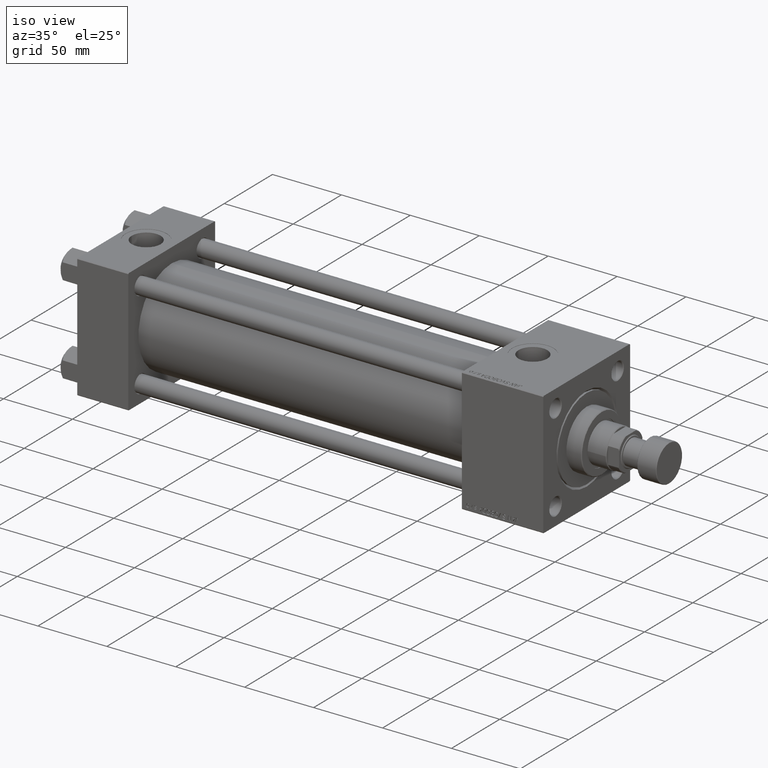
[diagram: clean part render]
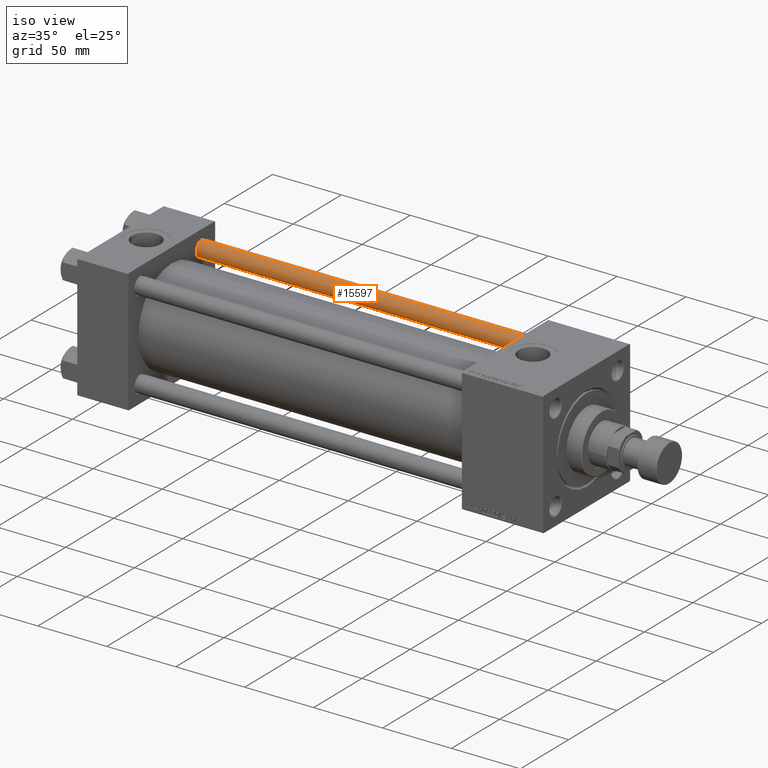
[diagram: same view with one face highlighted and labeled with its STEP entity id]
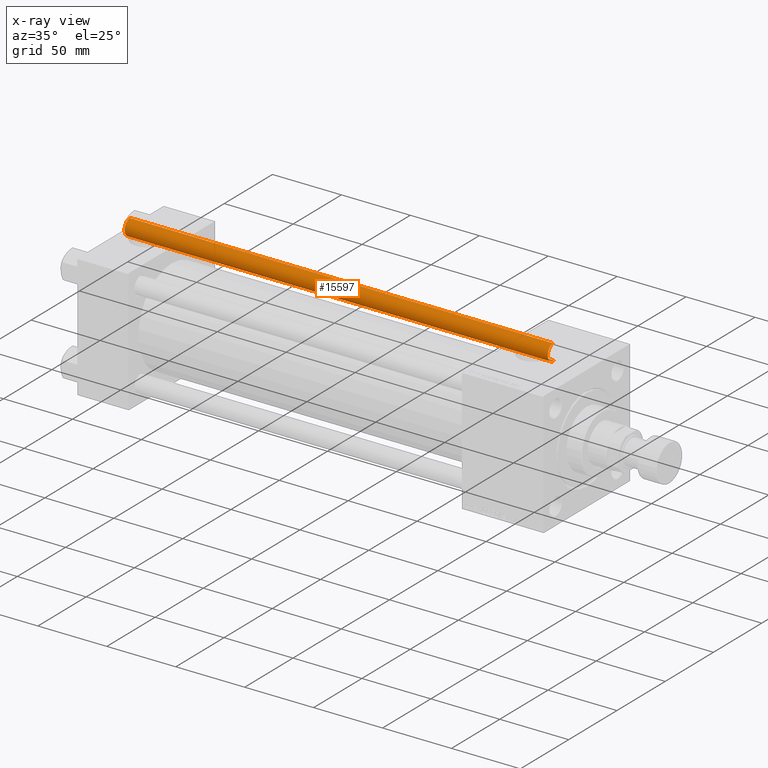
[diagram: x-ray of the same camera — body ghosted, the highlighted face saturated]
A machine part, iso view. The second image highlights one B-rep face of the part: STEP entity #15597.
The next image is the same camera in x-ray: the body ghosted, the highlighted face saturated — about 0% of this face is hidden behind the body in this view.
In plain terms, the highlighted cylindrical surface (edge-blend (fillet) strip) has radius 6 mm, axis along (-1, 0, 0).
Its self-contained STEP definition (entity closure, byte-faithful):
#2429 = CIRCLE ( 'NONE', #27077, 6.000000000000000888 ) ;
#2612 = CARTESIAN_POINT ( 'NONE',  ( -6.000000000000000888, 0.000000000000000000, 307.4999999999999432 ) ) ;
#3003 = ORIENTED_EDGE ( 'NONE', *, *, #23450, .T. ) ;
#4547 = CARTESIAN_POINT ( 'NONE',  ( 0.000000000000000000, 0.000000000000000000, 308.0000000000000000 ) ) ;
#7611 = VECTOR ( 'NONE', #11442, 1000.000000000000000 ) ;
#10066 = ORIENTED_EDGE ( 'NONE', *, *, #36546, .F. ) ;
#11442 = DIRECTION ( 'NONE',  ( -0.000000000000000000, -0.000000000000000000, -1.000000000000000000 ) ) ;
#11632 = CARTESIAN_POINT ( 'NONE',  ( 6.000000000000000888, 7.347880794884120722E-16, 0.5000000000000559552 ) ) ;
#13654 = VERTEX_POINT ( 'NONE', #24264 ) ;
#13719 = CARTESIAN_POINT ( 'NONE',  ( 6.000000000000000888, 7.347880794884120722E-16, 308.0000000000000000 ) ) ;
#15597 = ADVANCED_FACE ( 'NONE', ( #24814 ), #41082, .T. ) ;
#15991 = VERTEX_POINT ( 'NONE', #45287 ) ;
#16283 = DIRECTION ( 'NONE',  ( 0.000000000000000000, 0.000000000000000000, -1.000000000000000000 ) ) ;
#17193 = DIRECTION ( 'NONE',  ( -0.000000000000000000, -0.000000000000000000, -1.000000000000000000 ) ) ;
#17541 = DIRECTION ( 'NONE',  ( 1.000000000000000000, 0.000000000000000000, 0.000000000000000000 ) ) ;
#17562 = VERTEX_POINT ( 'NONE', #2612 ) ;
#18732 = CARTESIAN_POINT ( 'NONE',  ( 0.000000000000000000, 0.000000000000000000, 307.4999999999999432 ) ) ;
#19700 = LINE ( 'NONE', #24218, #7611 ) ;
#20798 = DIRECTION ( 'NONE',  ( -1.000000000000000000, 0.000000000000000000, 0.000000000000000000 ) ) ;
#21332 = DIRECTION ( 'NONE',  ( -0.000000000000000000, -0.000000000000000000, -1.000000000000000000 ) ) ;
#23450 = EDGE_CURVE ( 'NONE', #13654, #17562, #2429, .T. ) ;
#24218 = CARTESIAN_POINT ( 'NONE',  ( -6.000000000000000888, 0.000000000000000000, 308.0000000000000000 ) ) ;
#24264 = CARTESIAN_POINT ( 'NONE',  ( 6.000000000000000888, 7.347880794884120722E-16, 307.4999999999999432 ) ) ;
#24814 = FACE_OUTER_BOUND ( 'NONE', #38191, .T. ) ;
#24997 = AXIS2_PLACEMENT_3D ( 'NONE', #41261, #49276, #17541 ) ;
#27077 = AXIS2_PLACEMENT_3D ( 'NONE', #18732, #16283, #32522 ) ;
#28347 = EDGE_CURVE ( 'NONE', #17562, #15991, #19700, .T. ) ;
#31880 = VECTOR ( 'NONE', #17193, 1000.000000000000000 ) ;
#32522 = DIRECTION ( 'NONE',  ( 1.000000000000000000, 0.000000000000000000, 0.000000000000000000 ) ) ;
#34507 = EDGE_CURVE ( 'NONE', #15991, #50135, #50554, .T. ) ;
#36546 = EDGE_CURVE ( 'NONE', #13654, #50135, #49977, .T. ) ;
#38191 = EDGE_LOOP ( 'NONE', ( #10066, #3003, #49668, #42052 ) ) ;
#41082 = CYLINDRICAL_SURFACE ( 'NONE', #51545, 6.000000000000000888 ) ;
#41261 = CARTESIAN_POINT ( 'NONE',  ( 0.000000000000000000, 0.000000000000000000, 0.5000000000000559552 ) ) ;
#42052 = ORIENTED_EDGE ( 'NONE', *, *, #34507, .T. ) ;
#45287 = CARTESIAN_POINT ( 'NONE',  ( -6.000000000000000888, 0.000000000000000000, 0.5000000000000559552 ) ) ;
#49276 = DIRECTION ( 'NONE',  ( -0.000000000000000000, -0.000000000000000000, 1.000000000000000000 ) ) ;
#49668 = ORIENTED_EDGE ( 'NONE', *, *, #28347, .T. ) ;
#49977 = LINE ( 'NONE', #13719, #31880 ) ;
#50135 = VERTEX_POINT ( 'NONE', #11632 ) ;
#50554 = CIRCLE ( 'NONE', #24997, 6.000000000000000888 ) ;
#51545 = AXIS2_PLACEMENT_3D ( 'NONE', #4547, #21332, #20798 ) ;